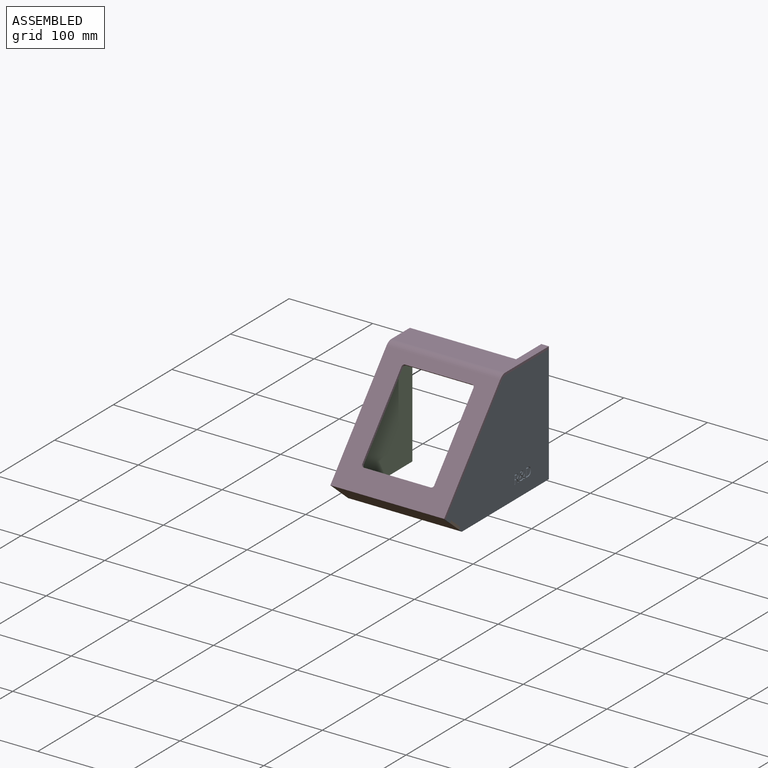
[diagram: assembled view]
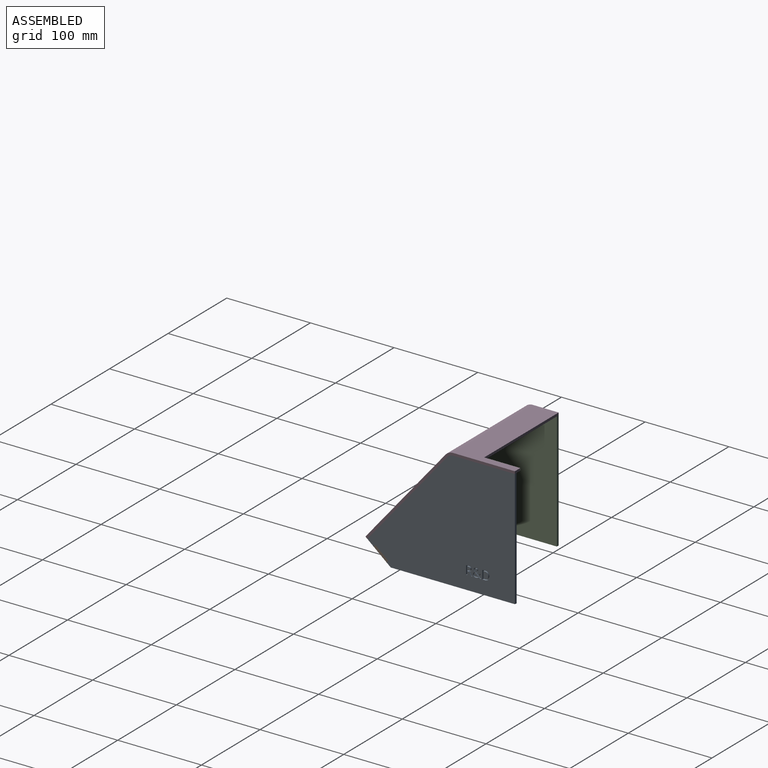
[diagram: assembled view, second angle]
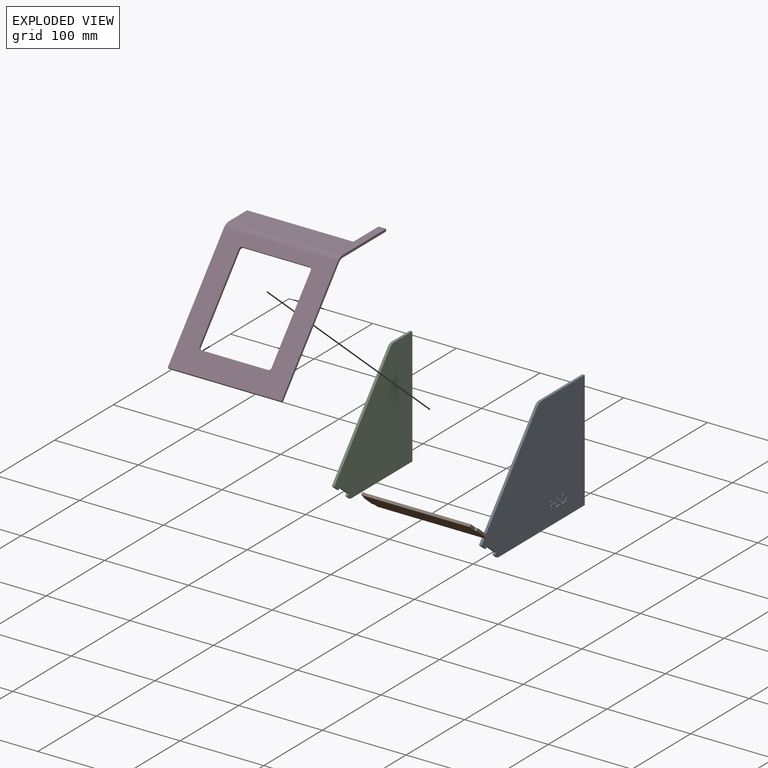
[diagram: exploded view]
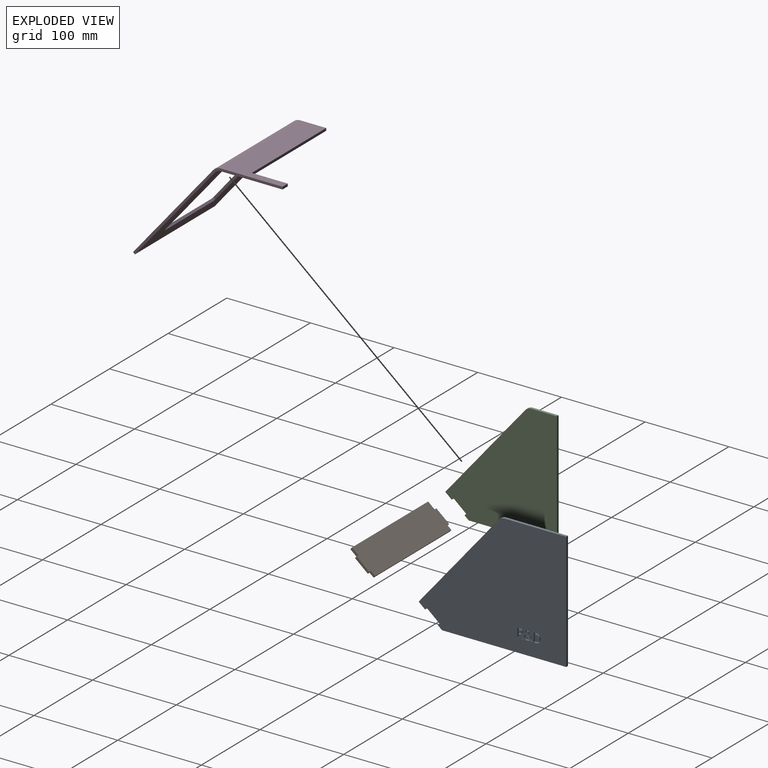
[diagram: exploded view, second angle]
ASSEMBLY  parts=4 mates=3
PART A: 89 faces, bbox 3x176.3x140.6 mm
  f0: plane 176.35x140.62mm, normal (1,0,0), area 18466.4mm2, adj f1,f2,f3,f4,f5,f6,f7,f8
  f1: plane 74x3mm, normal (0,0,1), area 222mm2, adj f0,f2,f10,f11
  f2: cylinder r=8.57mm len=6.57mm, axis (-1,0,0), area 22.4mm2, adj f0,f1,f3,f11
  f3: plane 114.14x95.78mm, normal (0,-0.77,0.64), area 447mm2, adj f0,f2,f4,f11
  f4: plane 7.66x6.43mm, normal (0,-0.64,-0.77), area 30mm2, adj f0,f3,f5,f11
  f5: plane 3x2.3mm, normal (0,0.77,-0.64), area 9mm2, adj f0,f4,f6,f11
  f6: plane 15.32x12.86mm, normal (0,-0.64,-0.77), area 60mm2, adj f0,f5,f7,f11
  f7: plane 3x2.3mm, normal (0,-0.77,0.64), area 9mm2, adj f0,f6,f8,f11
  f8: plane 4.92x4.13mm, normal (0,-0.64,-0.77), area 19.3mm2, adj f0,f7,f9,f11
  f9: plane 148.44x3mm, normal (0,0,-1), area 445.3mm2, adj f0,f8,f10,f11
  f10: plane 140.62x3mm, normal (0,1,0), area 421.9mm2, adj f0,f1,f9,f11
  f11: plane 176.35x140.62mm, normal (-1,0,0), area 18645.3mm2, adj f1,f2,f3,f4,f5,f6,f7,f8
  f12: extruded ~2x1.63mm, area 3.5mm2, adj f0,f13,f49,f50
  f13: extruded ~2.07x2mm, area 4.6mm2, adj f0,f12,f14,f50
  f14: extruded ~2.36x2mm, area 5.1mm2, adj f0,f13,f15,f50
  f15: extruded ~2x1.92mm, area 3.9mm2, adj f0,f14,f16,f50
  f16: extruded ~2x1.7mm, area 4mm2, adj f0,f15,f17,f50
  f17: plane 2x1.31mm, normal (0,0.69,0.72), area 3.6mm2, adj f0,f16,f18,f50
  f18: plane 2x1.62mm, normal (0,0,1), area 3.2mm2, adj f0,f17,f19,f50
  f19: plane 2.11x2.05mm, normal (0,-0.7,-0.72), area 5.9mm2, adj f0,f18,f20,f50
  f20: extruded ~3.07x2mm, area 6.9mm2, adj f0,f19,f21,f50
  f21: plane 2x1.19mm, normal (0,0,-1), area 2.4mm2, adj f0,f20,f22,f50
  f22: extruded ~2x1.29mm, area 2.7mm2, adj f0,f21,f23,f50
  f23: extruded ~2x1.03mm, area 2.4mm2, adj f0,f22,f24,f50
  f24: plane 2.87x2.76mm, normal (0,-0.69,-0.72), area 8mm2, adj f0,f23,f25,f50
  f25: extruded ~2x1.59mm, area 4.1mm2, adj f0,f24,f26,f50
  f26: extruded ~2x1.39mm, area 3mm2, adj f0,f25,f27,f50
  f27: extruded ~2x1.64mm, area 3.7mm2, adj f0,f26,f28,f50
  f28: extruded ~2x1.8mm, area 3.9mm2, adj f0,f27,f29,f50
  f29: extruded ~2x1.93mm, area 4.1mm2, adj f0,f28,f30,f50
  f30: extruded ~2x1.65mm, area 3.7mm2, adj f0,f29,f31,f50
  f31: extruded ~2x0.78mm, area 1.6mm2, adj f0,f30,f32,f50
  f32: extruded ~2x0.72mm, area 1.6mm2, adj f0,f31,f33,f50
  f33: extruded ~2x1.02mm, area 2.6mm2, adj f0,f32,f49,f50
  f34: extruded ~2.83x2mm, area 6.2mm2, adj f35,f47,f50,f52
  f35: extruded ~2x1.46mm, area 3.1mm2, adj f34,f36,f50,f52
  f36: extruded ~2x1.31mm, area 2.9mm2, adj f35,f37,f50,f52
  f37: extruded ~2x0.82mm, area 1.7mm2, adj f36,f38,f50,f52
  f38: extruded ~2x0.67mm, area 1.7mm2, adj f37,f39,f50,f52
  f39: extruded ~2x1.11mm, area 2.7mm2, adj f38,f47,f50,f52
  f40: extruded ~2x0.93mm, area 1.9mm2, adj f41,f48,f50,f51
  f41: extruded ~2x0.91mm, area 2.1mm2, adj f40,f42,f50,f51
  f42: extruded ~2x1.02mm, area 2.2mm2, adj f41,f43,f50,f51
  f43: extruded ~2x0.97mm, area 2.1mm2, adj f42,f44,f50,f51
  f44: extruded ~2x0.89mm, area 2mm2, adj f43,f45,f50,f51
  f45: extruded ~2x1.04mm, area 2.2mm2, adj f44,f46,f50,f51
  f46: extruded ~2x1.27mm, area 3.2mm2, adj f45,f48,f50,f51
  f47: plane 3.09x3mm, normal (0,0.7,0.72), area 8.6mm2, adj f34,f39,f50,f52
  f48: extruded ~2x1.06mm, area 2.8mm2, adj f40,f46,f50,f51
  f49: extruded ~2x1.76mm, area 4.6mm2, adj f0,f12,f33,f50
  f50: plane 10.63x9.73mm, normal (1,0,0), area 38mm2, adj f12,f13,f14,f15,f16,f17,f18,f19
  f51: plane 3.24x2.75mm, normal (1,0,0), area 6.5mm2, adj f40,f41,f42,f43,f44,f45,f46,f48
  f52: plane 4.83x4.08mm, normal (1,0,0), area 12.3mm2, adj f34,f35,f36,f37,f38,f39,f47
  f53: plane 2x1.65mm, normal (0,0,-1), area 3.3mm2, adj f54,f70,f71,f87
  f54: plane 3.95x2mm, normal (0,-1,0), area 7.9mm2, adj f53,f55,f71,f87
  f55: plane 2x1.56mm, normal (0,0,1), area 3.1mm2, adj f54,f56,f71,f87
  f56: extruded ~2x1.94mm, area 4mm2, adj f55,f57,f71,f87
  f57: extruded ~2x1.48mm, area 3.3mm2, adj f56,f58,f71,f87
  f58: extruded ~2x1.52mm, area 3.4mm2, adj f57,f70,f71,f87
  f59: plane 4.29x2mm, normal (0,-1,0), area 8.6mm2, adj f0,f60,f69,f71
  f60: plane 2.16x2mm, normal (0,0,1), area 4.3mm2, adj f0,f59,f61,f71
  f61: plane 4.29x2.5mm, normal (0,0.86,0.5), area 9.9mm2, adj f0,f60,f62,f71
  f62: plane 2x1.42mm, normal (0,0,1), area 2.8mm2, adj f0,f61,f63,f71
  f63: plane 4.64x2.81mm, normal (0,-0.86,-0.52), area 10.8mm2, adj f0,f62,f64,f71
  f64: extruded ~2.77x2.08mm, area 7.5mm2, adj f0,f63,f65,f71
  f65: extruded ~2.19x2mm, area 4.9mm2, adj f0,f64,f66,f71
  f66: extruded ~2.81x2mm, area 5.9mm2, adj f0,f65,f67,f71
  f67: plane 2.83x2mm, normal (0,0,-1), area 5.7mm2, adj f0,f66,f68,f71
  f68: plane 10.33x2mm, normal (0,1,0), area 20.7mm2, adj f0,f67,f69,f71
  f69: plane 2x1.2mm, normal (0,0,1), area 2.4mm2, adj f0,f59,f68,f71
  f70: extruded ~2x1.86mm, area 3.9mm2, adj f53,f58,f71,f87
  f71: plane 10.33x7.28mm, normal (1,0,0), area 32mm2, adj f53,f54,f55,f56,f57,f58,f59,f60
  f72: extruded ~3.04x2mm, area 6.6mm2, adj f73,f85,f86,f88
  f73: extruded ~3.13x2mm, area 6.8mm2, adj f72,f74,f86,f88
  f74: extruded ~3.23x2mm, area 7mm2, adj f73,f75,f86,f88
  f75: plane 2x1.46mm, normal (0,0,-1), area 2.9mm2, adj f74,f76,f86,f88
  f76: plane 8.25x2mm, normal (0,-1,0), area 16.5mm2, adj f75,f77,f86,f88
  f77: plane 2x1.75mm, normal (0,0,1), area 3.5mm2, adj f76,f85,f86,f88
  f78: extruded ~3.91x2mm, area 8.5mm2, adj f0,f79,f84,f86
  f79: extruded ~3.73x2mm, area 8.1mm2, adj f0,f78,f80,f86
  f80: extruded ~3.74x2mm, area 8.2mm2, adj f0,f79,f81,f86
  f81: plane 3.16x2mm, normal (0,0,-1), area 6.3mm2, adj f0,f80,f82,f86
  f82: plane 10.33x2mm, normal (0,1,0), area 20.7mm2, adj f0,f81,f83,f86
  f83: plane 2.86x2mm, normal (0,0,1), area 5.7mm2, adj f0,f82,f84,f86
  f84: extruded ~3.99x2mm, area 8.7mm2, adj f0,f78,f83,f86
  f85: extruded ~3.01x2mm, area 6.5mm2, adj f72,f77,f86,f88
  f86: plane 10.33x8.24mm, normal (1,0,0), area 33.7mm2, adj f72,f73,f74,f75,f76,f77,f78,f79
  f87: plane 4.1x3.95mm, normal (1,0,0), area 14.7mm2, adj f53,f54,f55,f56,f57,f58,f70
  f88: plane 8.25x5.77mm, normal (1,0,0), area 41.8mm2, adj f72,f73,f74,f75,f76,f77,f85
PART B: 14 faces, bbox 136x29.7x25.6 mm
  f0: plane 17.25x15.15mm, normal (1,0,0), area 60mm2, adj f1,f11,f12,f13
  f1: plane 3x2.3mm, normal (0,-0.77,0.64), area 9mm2, adj f0,f2,f12,f13
  f2: plane 9.59x8.73mm, normal (1,0,0), area 30mm2, adj f1,f3,f12,f13
  f3: plane 130x2.3mm, normal (0,-0.77,0.64), area 390mm2, adj f2,f4,f12,f13
  f4: plane 9.59x8.73mm, normal (-1,0,0), area 30mm2, adj f3,f5,f12,f13
  f5: plane 3x2.3mm, normal (0,-0.77,0.64), area 9mm2, adj f4,f6,f12,f13
  f6: plane 17.25x15.15mm, normal (-1,0,0), area 60mm2, adj f5,f7,f12,f13
  f7: plane 3x2.3mm, normal (0,0.77,-0.64), area 9mm2, adj f6,f8,f12,f13
  f8: plane 6.75x6.35mm, normal (-1,0,0), area 18.9mm2, adj f7,f9,f12,f13
  f9: plane 130x2.3mm, normal (0,0.77,-0.64), area 390mm2, adj f8,f10,f12,f13
  f10: plane 6.75x6.35mm, normal (1,0,0), area 18.9mm2, adj f9,f11,f12,f13
  f11: plane 3x2.3mm, normal (0,0.77,-0.64), area 9mm2, adj f0,f10,f12,f13
  f12: plane 136x27.81mm, normal (0,0.64,0.77), area 4839mm2, adj f0,f1,f2,f3,f4,f5,f6,f7
  f13: plane 136x27.81mm, normal (0,-0.64,-0.77), area 4839mm2, adj f0,f1,f2,f3,f4,f5,f6,f7
PART C: 12 faces, bbox 3x133.3x140.6 mm
  f0: plane 140.62x3mm, normal (0,1,0), area 421.9mm2, adj f1,f9,f10,f11
  f1: plane 31x3mm, normal (0,0,1), area 93mm2, adj f0,f2,f10,f11
  f2: cylinder r=8.57mm len=6.57mm, axis (1,0,0), area 22.4mm2, adj f1,f3,f10,f11
  f3: plane 114.14x95.78mm, normal (0,-0.77,0.64), area 447mm2, adj f2,f4,f10,f11
  f4: plane 7.66x6.43mm, normal (0,-0.64,-0.77), area 30mm2, adj f3,f5,f10,f11
  f5: plane 3x2.3mm, normal (0,0.77,-0.64), area 9mm2, adj f4,f6,f10,f11
  f6: plane 15.32x12.86mm, normal (0,-0.64,-0.77), area 60mm2, adj f5,f7,f10,f11
  f7: plane 3x2.3mm, normal (0,-0.77,0.64), area 9mm2, adj f6,f8,f10,f11
  f8: plane 4.92x4.13mm, normal (0,-0.64,-0.77), area 19.3mm2, adj f7,f9,f10,f11
  f9: plane 105.44x3mm, normal (0,0,-1), area 316.3mm2, adj f0,f8,f10,f11
  f10: plane 140.62x133.35mm, normal (-1,0,0), area 12598.7mm2, adj f0,f1,f2,f3,f4,f5,f6,f7
  f11: plane 140.62x133.35mm, normal (1,0,0), area 12598.7mm2, adj f0,f1,f2,f3,f4,f5,f6,f7
PART D: 20 faces, bbox 136x178.6x120.2 mm
  f0: plane 136x114.14mm, normal (0,0.77,-0.64), area 10812.2mm2, adj f2,f3,f8,f9,f10,f11,f12,f13
  f1: plane 136x114.14mm, normal (0,-0.77,0.64), area 10812.2mm2, adj f2,f7,f8,f9,f10,f11,f12,f13
  f2: plane 136x2.3mm, normal (0,-0.64,-0.77), area 408mm2, adj f0,f1,f8,f9
  f3: cylinder r=8.57mm len=136mm, axis (1,0,0), area 1017.1mm2, adj f0,f4,f8,f9
  f4: plane 136x74mm, normal (0,0,-1), area 4603.5mm2, adj f3,f5,f8,f9,f18,f19
  f5: plane 127x3mm, normal (0,1,0), area 381mm2, adj f4,f6,f8,f19
  f6: plane 136x74mm, normal (0,0,1), area 4603.5mm2, adj f5,f7,f8,f9,f18,f19
  f7: cylinder r=11.57mm len=136mm, axis (1,0,0), area 1373.2mm2, adj f1,f6,f8,f9
  f8: plane 135.64x120.21mm, normal (-1,0,0), area 566.4mm2, adj f0,f1,f2,f3,f4,f5,f6,f7
  f9: plane 178.64x120.21mm, normal (1,0,0), area 695.4mm2, adj f0,f1,f2,f3,f4,f6,f7,f18
  f10: plane 81.6x69.15mm, normal (-1,0,0), area 312mm2, adj f0,f1,f11,f17
  f11: cylinder r=3mm len=4.23mm, axis (0,-0.77,0.64), area 14.1mm2, adj f0,f1,f10,f12
  f12: plane 80x2.3mm, normal (0,-0.64,-0.77), area 240mm2, adj f0,f1,f11,f13
  f13: cylinder r=3mm len=4.23mm, axis (0,-0.77,0.64), area 14.1mm2, adj f0,f1,f12,f14
  f14: plane 81.6x69.15mm, normal (1,0,0), area 312mm2, adj f0,f1,f13,f15
  f15: cylinder r=3mm len=4.23mm, axis (0,-0.77,0.64), area 14.1mm2, adj f0,f1,f14,f16
  f16: plane 80x2.3mm, normal (0,0.64,0.77), area 240mm2, adj f0,f1,f15,f17
  f17: cylinder r=3mm len=4.23mm, axis (0,-0.77,0.64), area 14.1mm2, adj f0,f1,f10,f16
  f18: plane 9x3mm, normal (0,1,0), area 27mm2, adj f4,f6,f9,f19
  f19: plane 43x3mm, normal (-1,0,0), area 129mm2, adj f4,f5,f6,f18
PLACE A t=(10.35,18.62,-1.6)mm fixed
PLACE B t=(10.35,18.62,-1.6)mm
PLACE C t=(10.35,18.62,-1.6)mm
PLACE D t=(10.35,18.62,-1.6)mm
MATE fastened B.f13 <-> A.f4  axis (0,-0.64,-0.77) through (16.35,-62.67,-39.42)mm
MATE fastened C.f10 <-> B.f6  axis (-1,0,0) through (-119.65,-62.67,-39.42)mm
MATE fastened A.f3 <-> D.f0  axis (0,-0.77,0.64) through (16.35,-70.33,-32.99)mm
